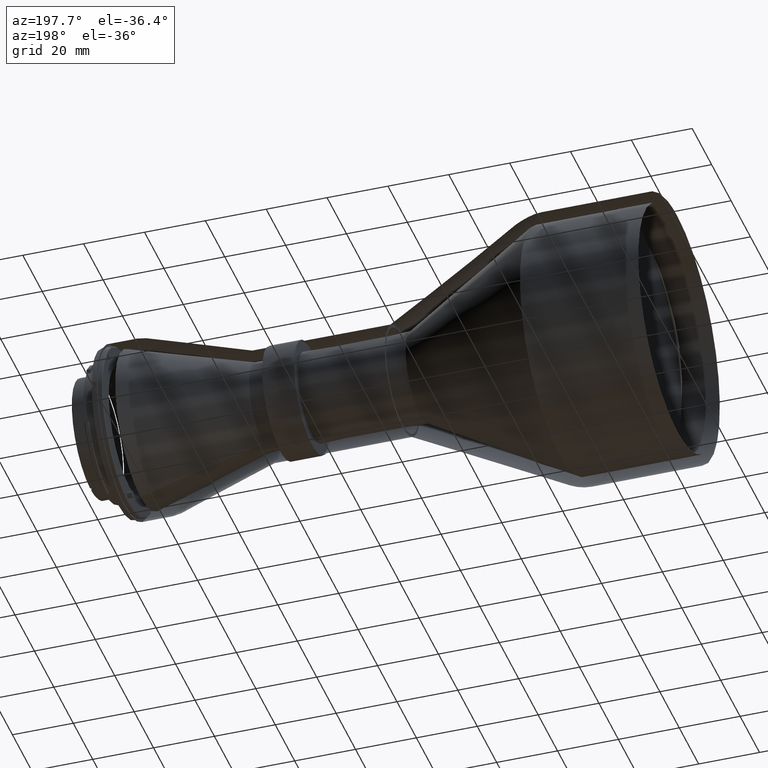
[diagram: clean part render]
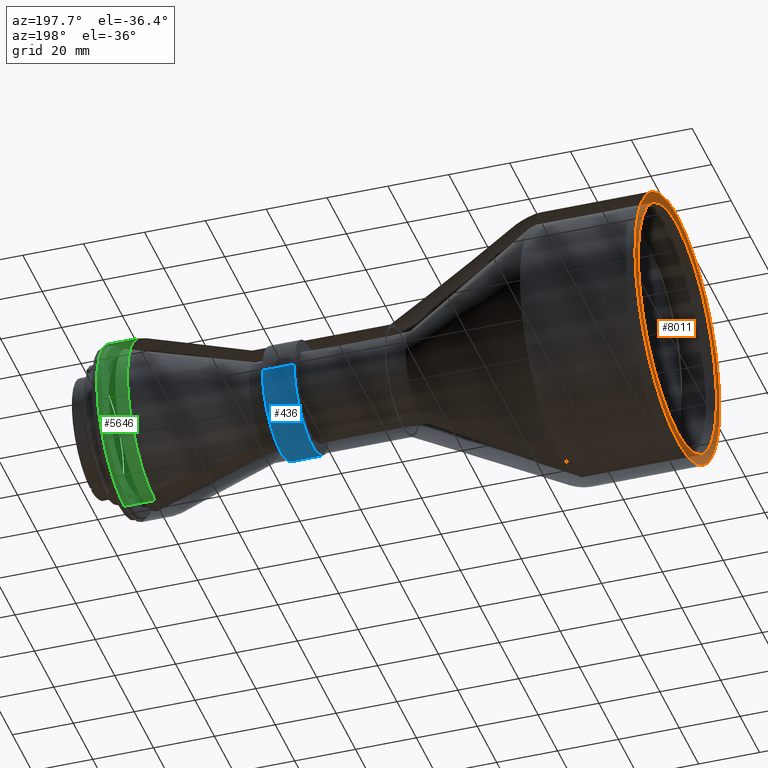
[diagram: same view with three faces highlighted in distinct colors, each labeled with its STEP entity id]
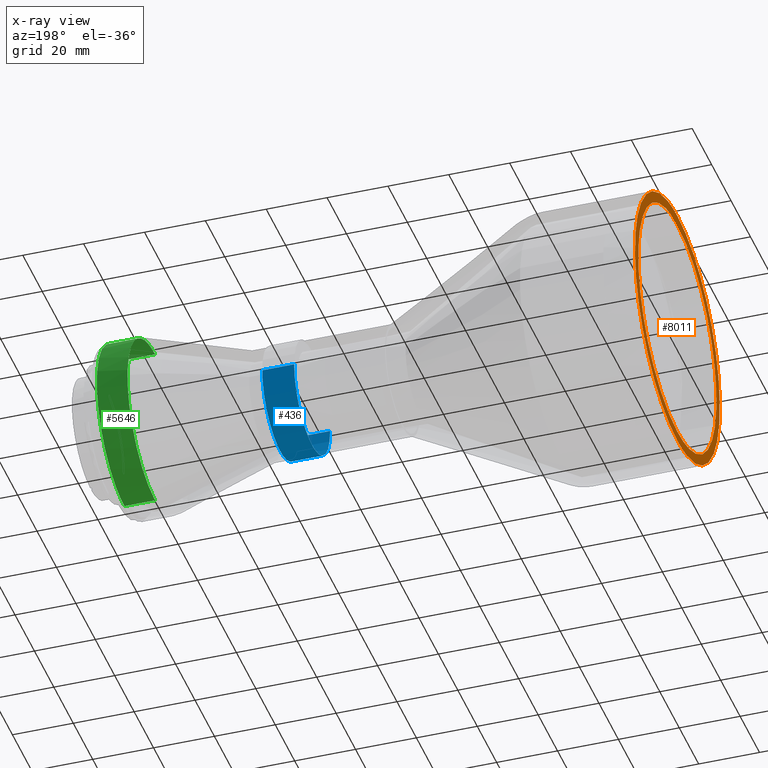
[diagram: x-ray of the same camera — body ghosted, the three highlighted faces saturated]
A machine part, auxiliary view with three faces highlighted in distinct colors.
The next image is the same camera in x-ray (body ghosted, the three faces saturated) — at least one of them is partly hidden behind the body in this view.
Their STEP definitions:

[orange] entity #8011 — the highlighted planar face has unit normal (1, 0, 0).
#9 = CARTESIAN_POINT ( 'NONE',  ( -24.05529751814149719, 40.20000000011754793, -166.7424990385070771 ) ) ;
#124 = CARTESIAN_POINT ( 'NONE',  ( -24.05529752000000343, -37.92915328975556832, -186.0042886179238906 ) ) ;
#280 = CARTESIAN_POINT ( 'NONE',  ( -24.05529752000000698, 43.69996389106649559, -166.9804314082603014 ) ) ;
#309 = CARTESIAN_POINT ( 'NONE',  ( -24.05529751814149719, -38.14682940462149929, -177.0644846573156599 ) ) ;
#373 = CARTESIAN_POINT ( 'NONE',  ( -24.05529752000000343, 21.89290990342585985, -126.1822073116891971 ) ) ;
#416 = CARTESIAN_POINT ( 'NONE',  ( -24.05529751814150785, -2.631083847389139585, -123.9114151910005290 ) ) ;
#452 = CARTESIAN_POINT ( 'NONE',  ( -24.05529751814149719, -36.13308500950306978, -181.9260936871634158 ) ) ;
#600 = CARTESIAN_POINT ( 'NONE',  ( -24.05529752000000343, -41.47150362719717975, -150.0387927913469639 ) ) ;
#634 = FACE_OUTER_BOUND ( 'NONE', #5271, .T. ) ;
#654 = EDGE_LOOP ( 'NONE', ( #6508, #9254 ) ) ;
#671 = CARTESIAN_POINT ( 'NONE',  ( -24.05529751907074854, 2.461540066293384931E-15, -123.9114151910002022 ) ) ;
#714 = CARTESIAN_POINT ( 'NONE',  ( -24.05529751814149719, 12.95306946619767352, -202.2582445957395691 ) ) ;
#742 = CARTESIAN_POINT ( 'NONE',  ( -24.05529751999999988, 21.89289931975238446, -202.0405472329132408 ) ) ;
#763 = ORIENTED_EDGE ( 'NONE', *, *, #1217, .T. ) ;
#806 = CARTESIAN_POINT ( 'NONE',  ( -24.05529751814149364, 10.42315925409722510, -203.0256844684045632 ) ) ;
#821 = CARTESIAN_POINT ( 'NONE',  ( -24.05529752000000343, -5.711366848872234669, -207.5315207745113355 ) ) ;
#836 = CARTESIAN_POINT ( 'NONE',  ( -24.05529752000000343, 39.27557723669417555, -183.4852927286013085 ) ) ;
#868 = CARTESIAN_POINT ( 'NONE',  ( -24.05529752289874779, -2.675853255814569971E-15, -207.8114151900000195 ) ) ;
#927 = CARTESIAN_POINT ( 'NONE',  ( -24.05529752289874779, -2.675853255814569971E-15, -207.8114151900000195 ) ) ;
#956 = CARTESIAN_POINT ( 'NONE',  ( -24.05529751814149719, -39.94086726736366444, -169.3735178271632549 ) ) ;
#1023 = CARTESIAN_POINT ( 'NONE',  ( -24.05529752000000698, 26.66392846375873305, -129.3701789554584707 ) ) ;
#1168 = CARTESIAN_POINT ( 'NONE',  ( -24.05529751999999988, 39.27563751722323104, -144.7374944676038808 ) ) ;
#1217 = EDGE_CURVE ( 'NONE', #2002, #8691, #7870, .T. ) ;
#1255 = CARTESIAN_POINT ( 'NONE',  ( -24.05529751814149364, -39.94086726736365023, -158.8493125550727143 ) ) ;
#1294 = ORIENTED_EDGE ( 'NONE', *, *, #7892, .T. ) ;
#1382 = CARTESIAN_POINT ( 'NONE',  ( -24.05529751814149719, 30.28614983414149719, -137.5461798176948776 ) ) ;
#1397 = CARTESIAN_POINT ( 'NONE',  ( -24.05529751999999988, -28.87181873202641214, -131.1821476719989619 ) ) ;
#1400 = B_SPLINE_CURVE_WITH_KNOTS ( 'NONE', 3,
 ( #3429, #2100, #6311, #2013, #2718, #4973, #9173, #7852, #1397, #4890, #4185, #4277, #7058, #600, #7149, #3564, #6445, #9306, #2851, #3755, #4455, #3804, #124, #8880, #4550, #6530, #1529, #4362, #1578, #1669, #5914, #821, #5208, #868 ),
 .UNSPECIFIED., .F., .F.,
 ( 4, 2, 2, 2, 2, 2, 2, 2, 2, 2, 2, 2, 2, 2, 2, 2, 4 ),
 ( 0.000000000000000000, 0.06250000000000009714, 0.1250000000000001943, 0.1875000000000001665, 0.2500000000000001665, 0.3125000000000001665, 0.3750000000000001110, 0.4375000000000001110, 0.5000000000000001110, 0.5625000000000001110, 0.6250000000000001110, 0.6875000000000001110, 0.7500000000000000000, 0.8125000000000000000, 0.8750000000000000000, 0.9375000000000000000, 1.000000000000000000 ),
 .UNSPECIFIED. ) ;
#1467 = CARTESIAN_POINT ( 'NONE',  ( -24.05529751814149364, 12.95306946619757760, -125.9645857864964142 ) ) ;
#1493 = CARTESIAN_POINT ( 'NONE',  ( -24.05529752000001054, 37.92919208940669762, -186.0043546325355521 ) ) ;
#1529 = CARTESIAN_POINT ( 'NONE',  ( -24.05529752000000343, -26.66392846244015757, -198.8526514257671067 ) ) ;
#1578 = CARTESIAN_POINT ( 'NONE',  ( -24.05529752000000343, -19.37390958907854355, -203.3869827031242608 ) ) ;
#1663 = CARTESIAN_POINT ( 'NONE',  ( -24.05529751814150075, -34.88683028084811610, -184.2576722920471468 ) ) ;
#1669 = CARTESIAN_POINT ( 'NONE',  ( -24.05529751999999988, -14.07262239917427138, -205.5829188180582605 ) ) ;
#1716 = CARTESIAN_POINT ( 'NONE',  ( -24.05529751814149719, -24.52158963397744174, -196.0747417395898538 ) ) ;
#1777 = CARTESIAN_POINT ( 'NONE',  ( -24.05529751999999988, 34.74129082498967591, -137.4474502531556652 ) ) ;
#1870 = CARTESIAN_POINT ( 'NONE',  ( -24.05529751814150075, -24.52158963397740976, -132.1480886426460586 ) ) ;
#1964 = CARTESIAN_POINT ( 'NONE',  ( -24.05529751814149719, -38.14682940462147087, -151.1583457249202809 ) ) ;
#2002 = VERTEX_POINT ( 'NONE', #2607 ) ;
#2013 = CARTESIAN_POINT ( 'NONE',  ( -24.05529751999999633, -11.33937504317850298, -121.8107900420586276 ) ) ;
#2084 = CARTESIAN_POINT ( 'NONE',  ( -24.05529751938049898, 2.028428064774069982E-14, -204.3114151908234817 ) ) ;
#2100 = CARTESIAN_POINT ( 'NONE',  ( -24.05529752000000698, -2.869214590545586585, -120.4114151910000174 ) ) ;
#2169 = CARTESIAN_POINT ( 'NONE',  ( -24.05529752386500064, 9.998786579289580097E-10, -120.4114151909481905 ) ) ;
#2173 = CARTESIAN_POINT ( 'NONE',  ( -24.05529751814150075, 34.88683028084815874, -184.2576722920471468 ) ) ;
#2202 = CARTESIAN_POINT ( 'NONE',  ( -24.05529751999999988, 28.87183998201845370, -197.0406568182703779 ) ) ;
#2217 = CARTESIAN_POINT ( 'NONE',  ( -24.05529751814149364, 38.91426927728655016, -153.6882559370206707 ) ) ;
#2262 = CARTESIAN_POINT ( 'NONE',  ( -24.05529751814149719, 31.96332654847196153, -188.6330048250954690 ) ) ;
#2342 = CARTESIAN_POINT ( 'NONE',  ( -24.05529752000000698, 2.869197761243929001, -207.8114151900000195 ) ) ;
#2420 = CARTESIAN_POINT ( 'NONE',  ( -24.05529751814149719, -2.631083847389192876, -204.3114151912355112 ) ) ;
#2563 = CARTESIAN_POINT ( 'NONE',  ( -24.05529751814149719, -30.28614983414155759, -190.6766505645409495 ) ) ;
#2575 = CARTESIAN_POINT ( 'NONE',  ( -24.05529751814150075, -17.81467849604542764, -127.9783301816148935 ) ) ;
#2580 = CARTESIAN_POINT ( 'NONE',  ( -24.05529752000000343, 43.70003610892442225, -161.2423989737395971 ) ) ;
#2607 = CARTESIAN_POINT ( 'NONE',  ( -24.05529752289874779, -2.675853255814569971E-15, -207.8114151900000195 ) ) ;
#2701 = CARTESIAN_POINT ( 'NONE',  ( -24.05529751907074854, 2.461540066293384931E-15, -123.9114151910002022 ) ) ;
#2718 = CARTESIAN_POINT ( 'NONE',  ( -24.05529751999999988, -14.07259727340287547, -122.6399722183101488 ) ) ;
#2770 = AXIS2_PLACEMENT_3D ( 'NONE', #4132, #6303, #9257 ) ;
#2792 = CARTESIAN_POINT ( 'NONE',  ( -24.05529751814150075, 38.14682940462154193, -177.0644846573156315 ) ) ;
#2851 = CARTESIAN_POINT ( 'NONE',  ( -24.05529752000000343, -43.42000835756421395, -169.8229342896760556 ) ) ;
#2878 = CARTESIAN_POINT ( 'NONE',  ( -24.05529751814149364, 26.56523537342297558, -133.8252653569763595 ) ) ;
#2973 = CARTESIAN_POINT ( 'NONE',  ( -24.05529751938049898, 2.028428064774069982E-14, -204.3114151908234817 ) ) ;
#3124 = VERTEX_POINT ( 'NONE', #2701 ) ;
#3143 = CARTESIAN_POINT ( 'NONE',  ( -24.05529752000000698, 28.87186515746157767, -131.1821012485146980 ) ) ;
#3176 = CARTESIAN_POINT ( 'NONE',  ( -24.05529751814149719, -26.56523537342305019, -194.3975650252594960 ) ) ;
#3243 = CARTESIAN_POINT ( 'NONE',  ( -24.05529752000000343, 37.92915329096956611, -142.2185417633207294 ) ) ;
#3272 = CARTESIAN_POINT ( 'NONE',  ( -24.05529751938049898, 2.028428064774069982E-14, -204.3114151908234817 ) ) ;
#3284 = CARTESIAN_POINT ( 'NONE',  ( -24.05529751814149719, -5.262102636045304926, -124.1705479237542562 ) ) ;
#3321 = CARTESIAN_POINT ( 'NONE',  ( -24.05529751814149009, -20.14625710092917643, -198.9982454719660723 ) ) ;
#3429 = CARTESIAN_POINT ( 'NONE',  ( -24.05529752386500064, 9.998786579289580097E-10, -120.4114151909481905 ) ) ;
#3551 = CARTESIAN_POINT ( 'NONE',  ( -24.05529751814149719, 26.56523537342307151, -194.3975650252595813 ) ) ;
#3564 = CARTESIAN_POINT ( 'NONE',  ( -24.05529752000000343, -43.42007274917808957, -158.3998832817995606 ) ) ;
#3592 = CARTESIAN_POINT ( 'NONE',  ( -24.05529751814149364, 40.20000000011754082, -161.4803313437288352 ) ) ;
#3686 = CARTESIAN_POINT ( 'NONE',  ( -24.05529751814149364, 36.13308500950306268, -146.2967366950724966 ) ) ;
#3717 = CARTESIAN_POINT ( 'NONE',  ( -24.05529752000000343, 11.33934299154105751, -206.4120500611384728 ) ) ;
#3755 = CARTESIAN_POINT ( 'NONE',  ( -24.05529751999999988, -42.30062514790116523, -175.4507902343588626 ) ) ;
#3804 = CARTESIAN_POINT ( 'NONE',  ( -24.05529751999999988, -39.27562816830870673, -183.4853499038098619 ) ) ;
#3864 = CARTESIAN_POINT ( 'NONE',  ( -24.05529752000000343, 11.33952729632823520, -121.8108872684458532 ) ) ;
#3906 = CARTESIAN_POINT ( 'NONE',  ( -24.05529752000000343, 19.37390959067296237, -124.8358476780378368 ) ) ;
#4043 = CARTESIAN_POINT ( 'NONE',  ( -24.05529751814150075, -30.28614983414151496, -137.5461798176949912 ) ) ;
#4132 = CARTESIAN_POINT ( 'NONE',  ( -24.05529751999999988, 44.22439999999999571, -164.1114151909999919 ) ) ;
#4185 = CARTESIAN_POINT ( 'NONE',  ( -24.05529751999999633, -34.74123623466640254, -137.4474867275060888 ) ) ;
#4260 = CARTESIAN_POINT ( 'NONE',  ( -24.05529751814150075, 2.631083847388980157, -123.9114151910004580 ) ) ;
#4277 = CARTESIAN_POINT ( 'NONE',  ( -24.05529752000000343, -37.92920787819640793, -142.2185052873020368 ) ) ;
#4304 = CARTESIAN_POINT ( 'NONE',  ( -24.05529751814149719, 20.14625710092916222, -198.9982454719661291 ) ) ;
#4311 = FACE_BOUND ( 'NONE', #654, .T. ) ;
#4346 = CARTESIAN_POINT ( 'NONE',  ( -24.05529751814149719, 10.42315925409710431, -125.1971459138314060 ) ) ;
#4362 = CARTESIAN_POINT ( 'NONE',  ( -24.05529751999999988, -21.89290990275323523, -202.0406230690914242 ) ) ;
#4392 = CARTESIAN_POINT ( 'NONE',  ( -24.05529751814149719, 38.14682940462152771, -151.1583457249202240 ) ) ;
#4455 = CARTESIAN_POINT ( 'NONE',  ( -24.05529752000000343, -41.47144297164471283, -178.1840124645947299 ) ) ;
#4546 = CARTESIAN_POINT ( 'NONE',  ( -24.05529751814149009, -31.96332654847192245, -188.6330048250954405 ) ) ;
#4550 = CARTESIAN_POINT ( 'NONE',  ( -24.05529752000000343, -32.92926751820039044, -192.9832339228270541 ) ) ;
#4654 = CARTESIAN_POINT ( 'NONE',  ( -24.05529751999999988, 42.30063487115615573, -152.7720721993655104 ) ) ;
#4750 = CARTESIAN_POINT ( 'NONE',  ( -24.05529751814149364, -26.56523537342301111, -133.8252653569763879 ) ) ;
#4773 = EDGE_CURVE ( 'NONE', #3124, #6282, #5676, .T. ) ;
#4843 = CARTESIAN_POINT ( 'NONE',  ( -24.05529751814149719, -31.96332654847188692, -139.5898255571405855 ) ) ;
#4890 = CARTESIAN_POINT ( 'NONE',  ( -24.05529751999999988, -32.92931394126961919, -135.2395500332936820 ) ) ;
#4959 = CARTESIAN_POINT ( 'NONE',  ( -24.05529751814149719, 34.88683028084808768, -143.9651580901887655 ) ) ;
#4966 = PLANE ( 'NONE',  #2770 ) ;
#4973 = CARTESIAN_POINT ( 'NONE',  ( -24.05529751999999633, -19.37393471300233116, -124.8357870217420640 ) ) ;
#5053 = CARTESIAN_POINT ( 'NONE',  ( -24.05529751814149719, 38.91426927728655727, -174.5345744452152417 ) ) ;
#5078 = CARTESIAN_POINT ( 'NONE',  ( -24.05529752000001054, 32.92929269326576502, -192.9833062384305720 ) ) ;
#5122 = CARTESIAN_POINT ( 'NONE',  ( -24.05529752000001054, 19.37390517380351085, -203.3870591479080758 ) ) ;
#5208 = CARTESIAN_POINT ( 'NONE',  ( -24.05529752000000343, -2.869551158206131714, -207.8114151900000763 ) ) ;
#5219 = CARTESIAN_POINT ( 'NONE',  ( -24.05529751999999988, 5.711551152491452399, -207.5314138263166512 ) ) ;
#5266 = CARTESIAN_POINT ( 'NONE',  ( -24.05529751999999988, 26.66393904576951357, -198.8527272630501272 ) ) ;
#5271 = EDGE_LOOP ( 'NONE', ( #1294, #763 ) ) ;
#5363 = CARTESIAN_POINT ( 'NONE',  ( -24.05529752000000343, 43.41999863629156664, -158.3998640386016916 ) ) ;
#5443 = CARTESIAN_POINT ( 'NONE',  ( -24.05529751814150075, -10.42315925409730504, -203.0256844684045632 ) ) ;
#5464 = CARTESIAN_POINT ( 'NONE',  ( -24.05529752000000343, 41.47143362471374672, -150.0388039259957509 ) ) ;
#5551 = CARTESIAN_POINT ( 'NONE',  ( -24.05529751814149364, -34.88683028084808058, -143.9651580901888508 ) ) ;
#5676 = B_SPLINE_CURVE_WITH_KNOTS ( 'NONE', 3,
 ( #7627, #416, #3284, #6167, #9032, #2575, #8327, #1870, #4750, #4043, #4843, #5551, #8423, #1964, #7719, #1255, #7612, #6766, #956, #8125, #309, #452, #1663, #4546, #2563, #3176, #1716, #3321, #9068, #8175, #5443, #6859, #2420, #3272 ),
 .UNSPECIFIED., .F., .F.,
 ( 4, 2, 2, 2, 2, 2, 2, 2, 2, 2, 2, 2, 2, 2, 2, 2, 4 ),
 ( 0.000000000000000000, 0.06250000000000002776, 0.1250000000000000000, 0.1875000000000000000, 0.2500000000000000000, 0.3124999999999999445, 0.3749999999999999445, 0.4374999999999998890, 0.4999999999999998890, 0.5624999999999998890, 0.6249999999999998890, 0.6875000000000000000, 0.7500000000000000000, 0.8125000000000000000, 0.8750000000000000000, 0.9375000000000001110, 1.000000000000000000 ),
 .UNSPECIFIED. ) ;
#5850 = CARTESIAN_POINT ( 'NONE',  ( -24.05529751814149719, 24.52158963397733160, -132.1480886426460017 ) ) ;
#5914 = CARTESIAN_POINT ( 'NONE',  ( -24.05529752000000343, -11.33952729512438040, -206.4119431125566848 ) ) ;
#6072 = CARTESIAN_POINT ( 'NONE',  ( -24.05529752000000698, 43.42006946634800357, -169.8229804322739369 ) ) ;
#6122 = CARTESIAN_POINT ( 'NONE',  ( -24.05529752000000698, 2.869551158999878115, -120.4114151910000174 ) ) ;
#6167 = CARTESIAN_POINT ( 'NONE',  ( -24.05529751814149719, -10.42315925409723931, -125.1971459138314344 ) ) ;
#6282 = VERTEX_POINT ( 'NONE', #2973 ) ;
#6303 = DIRECTION ( 'NONE',  ( 1.000000000000000000, 0.000000000000000000, 0.000000000000000000 ) ) ;
#6311 = CARTESIAN_POINT ( 'NONE',  ( -24.05529751999999988, -5.711519098856904009, -120.6914068324831959 ) ) ;
#6429 = CARTESIAN_POINT ( 'NONE',  ( -24.05529751814149719, 17.81467849604535303, -127.9783301816148651 ) ) ;
#6445 = CARTESIAN_POINT ( 'NONE',  ( -24.05529752000000343, -43.69996717229494010, -161.2423656393009139 ) ) ;
#6508 = ORIENTED_EDGE ( 'NONE', *, *, #6722, .F. ) ;
#6515 = CARTESIAN_POINT ( 'NONE',  ( -24.05529751814149364, 5.262102636045144166, -124.1705479237542562 ) ) ;
#6530 = CARTESIAN_POINT ( 'NONE',  ( -24.05529752000000698, -28.87186515650960317, -197.0407291324662822 ) ) ;
#6722 = EDGE_CURVE ( 'NONE', #6282, #3124, #7938, .T. ) ;
#6766 = CARTESIAN_POINT ( 'NONE',  ( -24.05529751814149364, -40.20000000011746977, -166.7424990385071339 ) ) ;
#6781 = CARTESIAN_POINT ( 'NONE',  ( -24.05529752000000343, 5.711366849665561851, -120.6913096064891704 ) ) ;
#6859 = CARTESIAN_POINT ( 'NONE',  ( -24.05529751814149009, -5.262102636045368875, -204.0522824584816703 ) ) ;
#7058 = CARTESIAN_POINT ( 'NONE',  ( -24.05529751999999988, -39.27556751199101370, -144.7375056004009366 ) ) ;
#7134 = CARTESIAN_POINT ( 'NONE',  ( -24.05529751814149364, 31.96332654847188692, -139.5898255571404434 ) ) ;
#7149 = CARTESIAN_POINT ( 'NONE',  ( -24.05529752000000343, -42.30056075589728692, -152.7720529542041561 ) ) ;
#7179 = CARTESIAN_POINT ( 'NONE',  ( -24.05529751814149719, 39.94086726736372128, -158.8493125550726290 ) ) ;
#7220 = CARTESIAN_POINT ( 'NONE',  ( -24.05529751814150075, 24.52158963397744529, -196.0747417395899106 ) ) ;
#7487 = CARTESIAN_POINT ( 'NONE',  ( -24.05529752000000343, 42.30056404070960241, -175.4507440937200897 ) ) ;
#7529 = CARTESIAN_POINT ( 'NONE',  ( -24.05529752386500064, 9.998786579289580097E-10, -120.4114151909481905 ) ) ;
#7612 = CARTESIAN_POINT ( 'NONE',  ( -24.05529751814150075, -40.20000000011746977, -161.4803313437288068 ) ) ;
#7627 = CARTESIAN_POINT ( 'NONE',  ( -24.05529751907074854, 2.461540066293384931E-15, -123.9114151910002022 ) ) ;
#7719 = CARTESIAN_POINT ( 'NONE',  ( -24.05529751814150075, -38.91426927728650043, -153.6882559370207844 ) ) ;
#7834 = CARTESIAN_POINT ( 'NONE',  ( -24.05529751814150075, 30.28614983414158246, -190.6766505645410632 ) ) ;
#7852 = CARTESIAN_POINT ( 'NONE',  ( -24.05529752000000343, -26.66396493684854008, -129.3701243660254647 ) ) ;
#7870 = B_SPLINE_CURVE_WITH_KNOTS ( 'NONE', 3,
 ( #927, #2342, #5219, #3717, #8847, #5122, #742, #5266, #2202, #5078, #8000, #1493, #836, #8237, #7487, #6072, #280, #2580, #5363, #4654, #5464, #1168, #3243, #1777, #9090, #3143, #1023, #373, #3906, #8283, #3864, #6781, #6122, #7529 ),
 .UNSPECIFIED., .F., .F.,
 ( 4, 2, 2, 2, 2, 2, 2, 2, 2, 2, 2, 2, 2, 2, 2, 2, 4 ),
 ( 0.000000000000000000, 0.06250000000000001388, 0.1250000000000000278, 0.1875000000000000555, 0.2500000000000000555, 0.3125000000000000000, 0.3749999999999999445, 0.4374999999999999445, 0.4999999999999998890, 0.5624999999999998890, 0.6249999999999998890, 0.6874999999999998890, 0.7499999999999998890, 0.8125000000000000000, 0.8750000000000000000, 0.9375000000000000000, 1.000000000000000000 ),
 .UNSPECIFIED. ) ;
#7879 = CARTESIAN_POINT ( 'NONE',  ( -24.05529751814150075, 39.94086726736373549, -169.3735178271632265 ) ) ;
#7892 = EDGE_CURVE ( 'NONE', #8691, #2002, #1400, .T. ) ;
#7926 = CARTESIAN_POINT ( 'NONE',  ( -24.05529751814149364, 20.14625710092902722, -129.2245849102697548 ) ) ;
#7938 = B_SPLINE_CURVE_WITH_KNOTS ( 'NONE', 3,
 ( #2084, #8547, #8634, #806, #714, #8019, #4304, #7220, #3551, #7834, #2262, #2173, #8590, #2792, #5053, #7879, #9, #3592, #7179, #2217, #4392, #3686, #4959, #7134, #1382, #2878, #5850, #7926, #6429, #1467, #4346, #6515, #4260, #671 ),
 .UNSPECIFIED., .F., .F.,
 ( 4, 2, 2, 2, 2, 2, 2, 2, 2, 2, 2, 2, 2, 2, 2, 2, 4 ),
 ( 0.000000000000000000, 0.06250000000000000000, 0.1250000000000000000, 0.1875000000000000000, 0.2500000000000000000, 0.3125000000000000000, 0.3750000000000000000, 0.4375000000000000000, 0.5000000000000000000, 0.5625000000000000000, 0.6250000000000000000, 0.6875000000000000000, 0.7500000000000000000, 0.8125000000000000000, 0.8750000000000000000, 0.9375000000000000000, 1.000000000000000000 ),
 .UNSPECIFIED. ) ;
#8000 = CARTESIAN_POINT ( 'NONE',  ( -24.05529751999999988, 34.74125202544155400, -190.7753141146506835 ) ) ;
#8011 = ADVANCED_FACE ( 'NONE', ( #4311, #634 ), #4966, .T. ) ;
#8019 = CARTESIAN_POINT ( 'NONE',  ( -24.05529751814150075, 17.81467849604544540, -200.2445002006211325 ) ) ;
#8125 = CARTESIAN_POINT ( 'NONE',  ( -24.05529751814149364, -38.91426927728649332, -174.5345744452151564 ) ) ;
#8175 = CARTESIAN_POINT ( 'NONE',  ( -24.05529751814150075, -12.95306946619773214, -202.2582445957395407 ) ) ;
#8237 = CARTESIAN_POINT ( 'NONE',  ( -24.05529752000000343, 41.47149390447754058, -178.1840696416464880 ) ) ;
#8283 = CARTESIAN_POINT ( 'NONE',  ( -24.05529751999999988, 14.07262239957403516, -122.6399115627847607 ) ) ;
#8327 = CARTESIAN_POINT ( 'NONE',  ( -24.05529751814149719, -20.14625710092913735, -129.2245849102698685 ) ) ;
#8423 = CARTESIAN_POINT ( 'NONE',  ( -24.05529751814149719, -36.13308500950302005, -146.2967366950725534 ) ) ;
#8547 = CARTESIAN_POINT ( 'NONE',  ( -24.05529751814149719, 2.631083847389091179, -204.3114151912354828 ) ) ;
#8590 = CARTESIAN_POINT ( 'NONE',  ( -24.05529751814149719, 36.13308500950310531, -181.9260936871634158 ) ) ;
#8634 = CARTESIAN_POINT ( 'NONE',  ( -24.05529751814149719, 5.262102636045270287, -204.0522824584817556 ) ) ;
#8691 = VERTEX_POINT ( 'NONE', #2169 ) ;
#8847 = CARTESIAN_POINT ( 'NONE',  ( -24.05529751999999633, 14.07262681459598497, -205.5828423740345272 ) ) ;
#8880 = CARTESIAN_POINT ( 'NONE',  ( -24.05529751999999633, -34.74129082421823966, -190.7753801276051888 ) ) ;
#9032 = CARTESIAN_POINT ( 'NONE',  ( -24.05529751814149364, -12.95306946619768063, -125.9645857864964995 ) ) ;
#9068 = CARTESIAN_POINT ( 'NONE',  ( -24.05529751814149719, -17.81467849604548448, -200.2445002006210188 ) ) ;
#9090 = CARTESIAN_POINT ( 'NONE',  ( -24.05529752000000343, 32.92926751923670281, -135.2395964581982923 ) ) ;
#9173 = CARTESIAN_POINT ( 'NONE',  ( -24.05529751999999988, -21.89287342668226799, -126.1822619000049457 ) ) ;
#9254 = ORIENTED_EDGE ( 'NONE', *, *, #4773, .F. ) ;
#9257 = DIRECTION ( 'NONE',  ( 0.000000000000000000, 1.000000000000000000, 0.000000000000000000 ) ) ;
#9306 = CARTESIAN_POINT ( 'NONE',  ( -24.05529751999999988, -43.70003282571427405, -166.9804647406991762 ) ) ;

[blue] entity #436 — the highlighted cylindrical surface (partial cylindrical patch) has radius 18.5 mm, axis along (-1, 0, 0).
#148 = CARTESIAN_POINT ( 'NONE',  ( 106.4747024800000048, -18.49999999999999645, -164.1114151909999634 ) ) ;
#341 = LINE ( 'NONE', #4668, #2834 ) ;
#436 = ADVANCED_FACE ( 'NONE', ( #6748 ), #894, .T. ) ;
#524 = DIRECTION ( 'NONE',  ( -1.000000000000000000, -9.601928862315010163E-16, -1.384079318194826058E-25 ) ) ;
#605 = EDGE_CURVE ( 'NONE', #4607, #4628, #341, .T. ) ;
#614 = CIRCLE ( 'NONE', #7087, 18.50000000000000000 ) ;
#894 = CYLINDRICAL_SURFACE ( 'NONE', #5713, 18.50000000000000000 ) ;
#1188 = EDGE_CURVE ( 'NONE', #8684, #4607, #614, .T. ) ;
#1677 = CARTESIAN_POINT ( 'NONE',  ( 95.97470247999999060, 18.50000000000003553, -164.1114151909999919 ) ) ;
#2178 = AXIS2_PLACEMENT_3D ( 'NONE', #4813, #524, #9273 ) ;
#2242 = DIRECTION ( 'NONE',  ( 0.000000000000000000, -1.000000000000000000, 1.500301384628589978E-15 ) ) ;
#2834 = VECTOR ( 'NONE', #8249, 1000.000000000000000 ) ;
#3899 = LINE ( 'NONE', #6774, #5341 ) ;
#4391 = DIRECTION ( 'NONE',  ( 0.000000000000000000, -1.000000000000000000, 0.000000000000000000 ) ) ;
#4463 = CARTESIAN_POINT ( 'NONE',  ( 106.4747024800000048, 18.50000000000000355, -164.1114151909999919 ) ) ;
#4594 = CARTESIAN_POINT ( 'NONE',  ( 95.97470248000001902, -18.49999999999996447, -164.1114151909999919 ) ) ;
#4607 = VERTEX_POINT ( 'NONE', #4463 ) ;
#4628 = VERTEX_POINT ( 'NONE', #1677 ) ;
#4668 = CARTESIAN_POINT ( 'NONE',  ( 106.2247024800000048, 18.49999999999997158, -164.1114151909999919 ) ) ;
#4813 = CARTESIAN_POINT ( 'NONE',  ( 95.97470248000000481, 3.371675941590879078E-14, -164.1114151909999919 ) ) ;
#4856 = VERTEX_POINT ( 'NONE', #4594 ) ;
#4972 = ORIENTED_EDGE ( 'NONE', *, *, #6697, .T. ) ;
#5105 = EDGE_LOOP ( 'NONE', ( #7056, #5473, #4972, #6833 ) ) ;
#5140 = CARTESIAN_POINT ( 'NONE',  ( 106.2247024800000048, -2.664535259100379799E-14, -164.1114151909999919 ) ) ;
#5341 = VECTOR ( 'NONE', #8278, 1000.000000000000000 ) ;
#5473 = ORIENTED_EDGE ( 'NONE', *, *, #1188, .F. ) ;
#5713 = AXIS2_PLACEMENT_3D ( 'NONE', #5140, #5943, #4391 ) ;
#5733 = EDGE_CURVE ( 'NONE', #4628, #4856, #7610, .T. ) ;
#5943 = DIRECTION ( 'NONE',  ( -1.000000000000000000, 0.000000000000000000, 0.000000000000000000 ) ) ;
#6697 = EDGE_CURVE ( 'NONE', #8684, #4856, #3899, .T. ) ;
#6748 = FACE_OUTER_BOUND ( 'NONE', #5105, .T. ) ;
#6774 = CARTESIAN_POINT ( 'NONE',  ( 106.2247024800000048, -18.50000000000002842, -164.1114151909999919 ) ) ;
#6833 = ORIENTED_EDGE ( 'NONE', *, *, #5733, .F. ) ;
#7056 = ORIENTED_EDGE ( 'NONE', *, *, #605, .F. ) ;
#7087 = AXIS2_PLACEMENT_3D ( 'NONE', #8094, #7301, #2242 ) ;
#7301 = DIRECTION ( 'NONE',  ( 1.000000000000000000, 4.609851892553100381E-30, 2.400482215077530339E-15 ) ) ;
#7610 = CIRCLE ( 'NONE', #2178, 18.49999999999998934 ) ;
#8094 = CARTESIAN_POINT ( 'NONE',  ( 106.4747024800000048, 2.220446049250309925E-15, -164.1114151909999919 ) ) ;
#8249 = DIRECTION ( 'NONE',  ( -1.000000000000000000, 0.000000000000000000, 0.000000000000000000 ) ) ;
#8278 = DIRECTION ( 'NONE',  ( -1.000000000000000000, 0.000000000000000000, 0.000000000000000000 ) ) ;
#8684 = VERTEX_POINT ( 'NONE', #148 ) ;
#9273 = DIRECTION ( 'NONE',  ( 0.000000000000000000, -1.441459667158090396E-10, 1.000000000000000000 ) ) ;

[green] entity #5646 — the highlighted cylindrical surface (partial cylindrical patch) has radius 28.4 mm, axis along (1, 0, 0).
#38 = B_SPLINE_CURVE_WITH_KNOTS ( 'NONE', 3,
 ( #8973, #6005, #4736, #8270, #4032, #6811, #6151, #6724, #5252, #8875, #7472, #359, #1008, #5391, #5346, #8221, #2516, #1762, #1101, #4640, #7514, #1051, #3937, #3984, #7596, #7690, #2594, #6841, #1891, #6890, #6942, #7643, #390, #6990 ),
 .UNSPECIFIED., .F., .F.,
 ( 4, 2, 2, 2, 2, 2, 2, 2, 2, 2, 2, 2, 2, 2, 2, 2, 4 ),
 ( 0.000000000000000000, 0.06250000000000004163, 0.1250000000000000833, 0.1875000000000001110, 0.2500000000000001110, 0.3125000000000001110, 0.3750000000000000555, 0.4375000000000000555, 0.5000000000000000000, 0.5625000000000000000, 0.6250000000000001110, 0.6875000000000001110, 0.7500000000000001110, 0.8125000000000002220, 0.8750000000000001110, 0.9375000000000001110, 1.000000000000000000 ),
 .UNSPECIFIED. ) ;
#187 = CARTESIAN_POINT ( 'NONE',  ( 152.6290518195000061, 0.000000000000000000, -135.7114151910001851 ) ) ;
#191 = ORIENTED_EDGE ( 'NONE', *, *, #7652, .F. ) ;
#203 = ORIENTED_EDGE ( 'NONE', *, *, #4877, .F. ) ;
#336 = CARTESIAN_POINT ( 'NONE',  ( 147.5765165929999796, 0.3370917440322415692, -192.5099103664448421 ) ) ;
#359 = CARTESIAN_POINT ( 'NONE',  ( 157.6815870460000326, 24.64992168510899262, -149.8840455754425136 ) ) ;
#390 = CARTESIAN_POINT ( 'NONE',  ( 157.6815870460000042, 1.864585440726514109, -192.5114151910000544 ) ) ;
#427 = CARTESIAN_POINT ( 'NONE',  ( 147.5765165930000080, 0.1687952897695023657, -192.5114151906289521 ) ) ;
#755 = CARTESIAN_POINT ( 'NONE',  ( 157.6815870460000326, 1.738998454769219865E-15, -135.7114151910000146 ) ) ;
#1008 = CARTESIAN_POINT ( 'NONE',  ( 157.6815870460000610, 25.52445497497270921, -151.5200297710760822 ) ) ;
#1030 = FACE_OUTER_BOUND ( 'NONE', #6744, .T. ) ;
#1051 = CARTESIAN_POINT ( 'NONE',  ( 157.6815870460000326, 25.52438823297176995, -176.7027729650032484 ) ) ;
#1101 = CARTESIAN_POINT ( 'NONE',  ( 157.6815870460000326, 28.21820761404530842, -167.8226882357183740 ) ) ;
#1240 = VERTEX_POINT ( 'NONE', #6925 ) ;
#1361 = CARTESIAN_POINT ( 'NONE',  ( 147.5765165930001217, 56.29079685457296023, -135.7114151903873278 ) ) ;
#1762 = CARTESIAN_POINT ( 'NONE',  ( 157.6815870460000610, 28.39996387939583755, -165.9765524270138428 ) ) ;
#1891 = CARTESIAN_POINT ( 'NONE',  ( 157.6815870460000042, 12.59138541977956649, -189.6358701659766837 ) ) ;
#2351 = ORIENTED_EDGE ( 'NONE', *, *, #5625, .F. ) ;
#2386 = EDGE_CURVE ( 'NONE', #1240, #5779, #8430, .T. ) ;
#2516 = CARTESIAN_POINT ( 'NONE',  ( 157.6815870460000895, 28.40003612060415961, -162.2462779546528679 ) ) ;
#2594 = CARTESIAN_POINT ( 'NONE',  ( 157.6815870460000610, 17.32901962012537567, -186.6889674845586171 ) ) ;
#3150 = CARTESIAN_POINT ( 'NONE',  ( 147.5765165930000080, 2.126563913806709760E-13, -192.5114151904409994 ) ) ;
#3384 = ORIENTED_EDGE ( 'NONE', *, *, #2386, .T. ) ;
#3867 = DIRECTION ( 'NONE',  ( 1.000000000000000000, 0.000000000000000000, 0.000000000000000000 ) ) ;
#3916 =( BOUNDED_CURVE ( )  B_SPLINE_CURVE ( 3, ( #9317, #6366, #1361, #7166 ),
 .UNSPECIFIED., .F., .F. ) 
 B_SPLINE_CURVE_WITH_KNOTS ( ( 4, 4 ),
 ( 0.000000000000000000, 0.9911890303371896360 ),
 .UNSPECIFIED. ) 
 CURVE ( )  GEOMETRIC_REPRESENTATION_ITEM ( )  RATIONAL_B_SPLINE_CURVE ( ( 1.000000000000000000, 0.3392073131085984183, 0.3333850887909322602, 0.9825333270470016922 ) ) 
 REPRESENTATION_ITEM ( '' )  );
#3937 = CARTESIAN_POINT ( 'NONE',  ( 157.6815870460000326, 24.64998175168642902, -178.3388249413311826 ) ) ;
#3984 = CARTESIAN_POINT ( 'NONE',  ( 157.6815870460000326, 22.57749222735277428, -181.4403946758012012 ) ) ;
#4032 = CARTESIAN_POINT ( 'NONE',  ( 157.6815870460000326, 9.145061184240855567, -137.1594459772974517 ) ) ;
#4640 = CARTESIAN_POINT ( 'NONE',  ( 157.6815870460000610, 27.49039631293133823, -171.4812724364300323 ) ) ;
#4711 = DIRECTION ( 'NONE',  ( 1.000000000000000000, 0.000000000000000000, 0.000000000000000000 ) ) ;
#4736 = CARTESIAN_POINT ( 'NONE',  ( 157.6815870460000042, 3.711273044835368573, -135.8932075769392327 ) ) ;
#4765 = CARTESIAN_POINT ( 'NONE',  ( 152.6290518195000061, 1.067662871870729885E-13, -164.1114151906730001 ) ) ;
#4851 = CARTESIAN_POINT ( 'NONE',  ( 152.6290518195000061, 2.100545774646075705E-13, -192.5114151903457866 ) ) ;
#4877 = EDGE_CURVE ( 'NONE', #8613, #5779, #38, .T. ) ;
#5107 = EDGE_CURVE ( 'NONE', #5644, #8613, #7256, .T. ) ;
#5252 = CARTESIAN_POINT ( 'NONE',  ( 157.6815870460000610, 18.76300693911665718, -142.7107058764414660 ) ) ;
#5272 = CARTESIAN_POINT ( 'NONE',  ( 147.5765165930000080, 3.096017441872867013E-14, -135.7114151906885695 ) ) ;
#5311 = VECTOR ( 'NONE', #7726, 1000.000000000000000 ) ;
#5346 = CARTESIAN_POINT ( 'NONE',  ( 157.6815870460000326, 27.49046716596987494, -156.7415438516108566 ) ) ;
#5391 = CARTESIAN_POINT ( 'NONE',  ( 157.6815870460000326, 26.95190247157270846, -154.9663816523558069 ) ) ;
#5415 = DIRECTION ( 'NONE',  ( 0.000000000000000000, -3.759376309447290756E-15, 1.000000000000000000 ) ) ;
#5503 = AXIS2_PLACEMENT_3D ( 'NONE', #4765, #4711, #5415 ) ;
#5625 = EDGE_CURVE ( 'NONE', #1240, #7930, #6901, .T. ) ;
#5644 = VERTEX_POINT ( 'NONE', #5272 ) ;
#5646 = ADVANCED_FACE ( 'NONE', ( #1030 ), #8946, .F. ) ;
#5779 = VERTEX_POINT ( 'NONE', #6983 ) ;
#5824 = CARTESIAN_POINT ( 'NONE',  ( 147.5765165930000080, 0.5048719465222309966, -192.5069272358805108 ) ) ;
#6005 = CARTESIAN_POINT ( 'NONE',  ( 157.6815870460000326, 1.864955664101499933, -135.7114151909999293 ) ) ;
#6151 = CARTESIAN_POINT ( 'NONE',  ( 157.6815870460000326, 14.22740975057343960, -139.4614334394792650 ) ) ;
#6152 = VECTOR ( 'NONE', #3867, 1000.000000000000000 ) ;
#6366 = CARTESIAN_POINT ( 'NONE',  ( 147.5765165930000933, 55.82073918927665090, -191.5234116202969119 ) ) ;
#6724 = CARTESIAN_POINT ( 'NONE',  ( 157.6815870460000042, 17.32897948483599748, -141.5339229636667255 ) ) ;
#6744 = EDGE_LOOP ( 'NONE', ( #2351, #3384, #203, #9028, #191 ) ) ;
#6811 = CARTESIAN_POINT ( 'NONE',  ( 157.6815870460000610, 12.59135777401925438, -138.5870269580296679 ) ) ;
#6841 = CARTESIAN_POINT ( 'NONE',  ( 157.6815870460000042, 14.22736961583843751, -188.7613368759250818 ) ) ;
#6890 = CARTESIAN_POINT ( 'NONE',  ( 157.6815870460000042, 9.145033539096433017, -191.0633176624411078 ) ) ;
#6901 =( BOUNDED_CURVE ( )  B_SPLINE_CURVE ( 3, ( #3150, #427, #336, #8243 ),
 .UNSPECIFIED., .F., .F. ) 
 B_SPLINE_CURVE_WITH_KNOTS ( ( 4, 4 ),
 ( 0.000000000000000000, 1.000000000000000000 ),
 .UNSPECIFIED. ) 
 CURVE ( )  GEOMETRIC_REPRESENTATION_ITEM ( )  RATIONAL_B_SPLINE_CURVE ( ( 0.9825333270470049118, 0.9883037959070696266, 0.9941260202247346189, 1.000000000000000000 ) ) 
 REPRESENTATION_ITEM ( '' )  );
#6925 = CARTESIAN_POINT ( 'NONE',  ( 147.5765165930000080, 2.126563913806709760E-13, -192.5114151904409994 ) ) ;
#6942 = CARTESIAN_POINT ( 'NONE',  ( 157.6815870460000326, 7.369689801992183931, -191.6019184633179577 ) ) ;
#6983 = CARTESIAN_POINT ( 'NONE',  ( 157.6815870460000326, 2.222886118446129997E-10, -192.5114151905640085 ) ) ;
#6990 = CARTESIAN_POINT ( 'NONE',  ( 157.6815870460000326, 2.222886118446129997E-10, -192.5114151905640085 ) ) ;
#7166 = CARTESIAN_POINT ( 'NONE',  ( 147.5765165930000080, 3.096017441872867013E-14, -135.7114151906885695 ) ) ;
#7256 = LINE ( 'NONE', #187, #6152 ) ;
#7472 = CARTESIAN_POINT ( 'NONE',  ( 157.6815870460000610, 22.57755229355982962, -146.7823955708708752 ) ) ;
#7514 = CARTESIAN_POINT ( 'NONE',  ( 157.6815870460000610, 26.95196921382876809, -173.2564763749489032 ) ) ;
#7596 = CARTESIAN_POINT ( 'NONE',  ( 157.6815870460000326, 21.40070931474334870, -182.8744221299317871 ) ) ;
#7643 = CARTESIAN_POINT ( 'NONE',  ( 157.6815870460000042, 3.711440489136919485, -192.3295158454636180 ) ) ;
#7652 = EDGE_CURVE ( 'NONE', #7930, #5644, #3916, .T. ) ;
#7690 = CARTESIAN_POINT ( 'NONE',  ( 157.6815870460000610, 18.76295585700609436, -185.5120734231105928 ) ) ;
#7726 = DIRECTION ( 'NONE',  ( 1.000000000000000000, 0.000000000000000000, 0.000000000000000000 ) ) ;
#7930 = VERTEX_POINT ( 'NONE', #5824 ) ;
#8221 = CARTESIAN_POINT ( 'NONE',  ( 157.6815870460000610, 28.21813676087671041, -160.4001562395870337 ) ) ;
#8243 = CARTESIAN_POINT ( 'NONE',  ( 147.5765165930000080, 0.5048719465222309966, -192.5069272358805108 ) ) ;
#8270 = CARTESIAN_POINT ( 'NONE',  ( 157.6815870460000326, 7.369857245639833465, -136.6210188781491297 ) ) ;
#8430 = LINE ( 'NONE', #4851, #5311 ) ;
#8613 = VERTEX_POINT ( 'NONE', #755 ) ;
#8875 = CARTESIAN_POINT ( 'NONE',  ( 157.6815870460000042, 21.40065823216136920, -145.3484593340446906 ) ) ;
#8946 = CYLINDRICAL_SURFACE ( 'NONE', #5503, 28.39999999967279720 ) ;
#8973 = CARTESIAN_POINT ( 'NONE',  ( 157.6815870460000326, 1.738998454769219865E-15, -135.7114151910000146 ) ) ;
#9028 = ORIENTED_EDGE ( 'NONE', *, *, #5107, .F. ) ;
#9317 = CARTESIAN_POINT ( 'NONE',  ( 147.5765165930000080, 0.5048719465222309966, -192.5069272358805108 ) ) ;